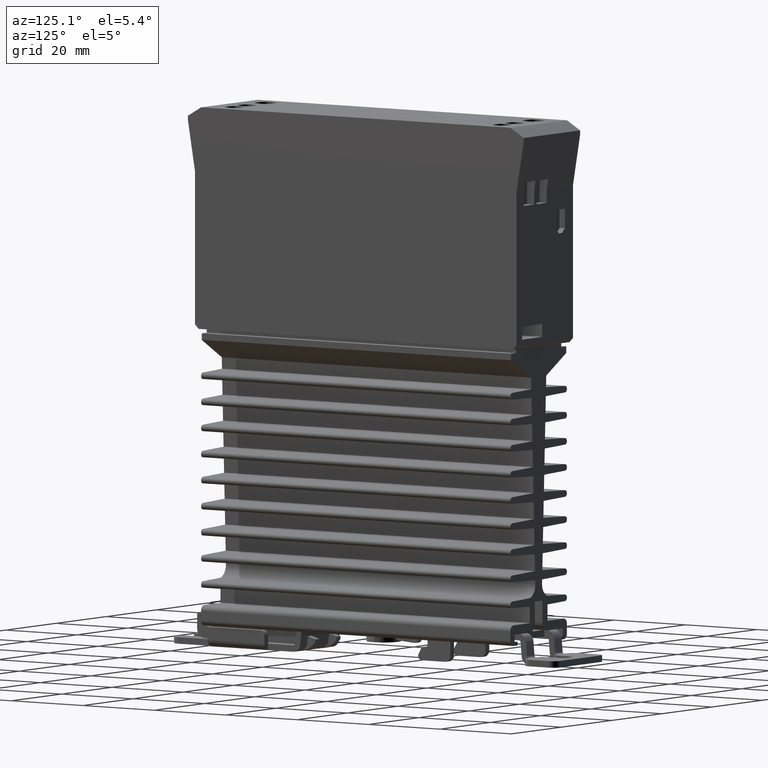
[diagram: clean part render]
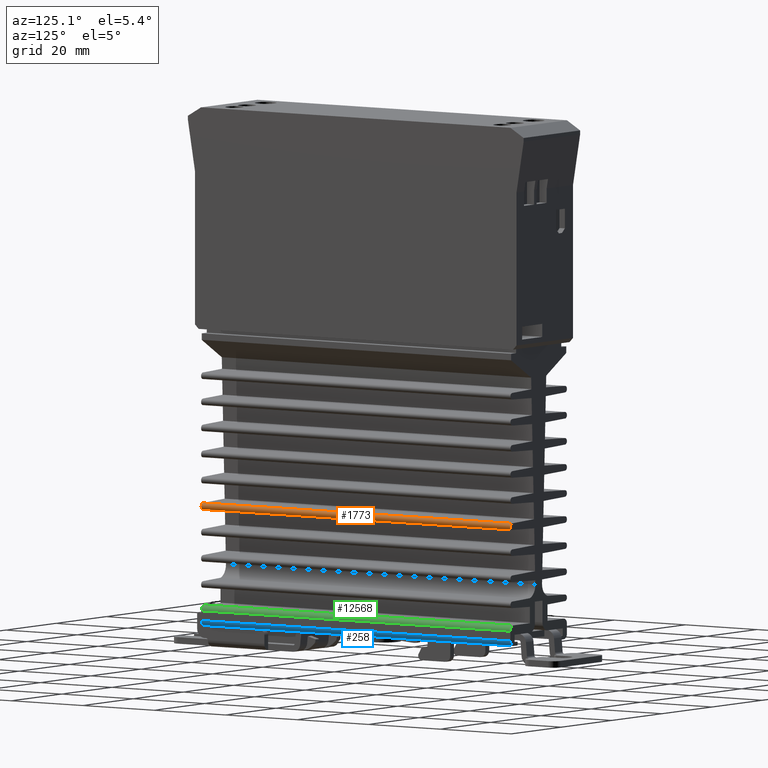
[diagram: same view with three faces highlighted in distinct colors, each labeled with its STEP entity id]
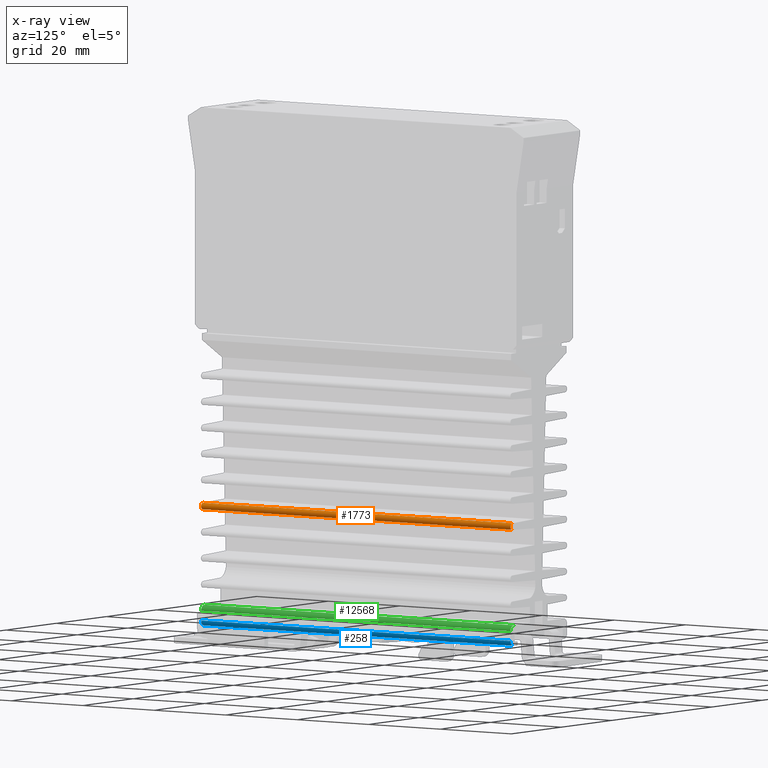
[diagram: x-ray of the same camera — body ghosted, the three highlighted faces saturated]
A machine part, auxiliary view with three faces highlighted in distinct colors.
The next image is the same camera in x-ray (body ghosted, the three faces saturated) — at least one of them is partly hidden behind the body in this view.
Their STEP definitions:

[orange] entity #1773 — the highlighted cylindrical surface (edge-blend (fillet) strip) has radius 0.75 mm, axis along (0, 1, 0).
#210 = EDGE_CURVE ( 'NONE', #7855, #1487, #10138, .T. ) ;
#1418 = EDGE_CURVE ( 'NONE', #14571, #2906, #6160, .T. ) ;
#1487 = VERTEX_POINT ( 'NONE', #16046 ) ;
#1757 = EDGE_CURVE ( 'NONE', #1487, #2906, #7313, .T. ) ;
#1773 = ADVANCED_FACE ( 'NONE', ( #8053 ), #13070, .T. ) ;
#1820 = VECTOR ( 'NONE', #16206, 39.37007874015748143 ) ;
#2573 = EDGE_LOOP ( 'NONE', ( #16271, #8521, #3639, #12224 ) ) ;
#2906 = VERTEX_POINT ( 'NONE', #3216 ) ;
#2917 = DIRECTION ( 'NONE',  ( 0.000000000000000000, 1.000000000000000000, 0.000000000000000000 ) ) ;
#3216 = CARTESIAN_POINT ( 'NONE',  ( 0.4144163237215291451, 1.704724409448818978, -1.576789640934476378 ) ) ;
#3639 = ORIENTED_EDGE ( 'NONE', *, *, #1757, .T. ) ;
#3815 = CARTESIAN_POINT ( 'NONE',  ( 0.4144163237215291451, -1.704724409448818978, -1.635808784262376303 ) ) ;
#3932 = AXIS2_PLACEMENT_3D ( 'NONE', #4670, #5663, #9614 ) ;
#4359 = CARTESIAN_POINT ( 'NONE',  ( 0.4133858267716535861, -1.704724409448818978, -1.606299212598425452 ) ) ;
#4587 = CARTESIAN_POINT ( 'NONE',  ( 0.4144163237215291451, -1.704724409448818978, -1.635808784262376303 ) ) ;
#4670 = CARTESIAN_POINT ( 'NONE',  ( 0.4133858267716535861, 1.704724409448818978, -1.606299212598425452 ) ) ;
#5026 = CIRCLE ( 'NONE', #11063, 0.02952755905511813758 ) ;
#5595 = EDGE_CURVE ( 'NONE', #7855, #14571, #5026, .T. ) ;
#5663 = DIRECTION ( 'NONE',  ( -0.000000000000000000, -1.000000000000000000, -0.000000000000000000 ) ) ;
#5821 = DIRECTION ( 'NONE',  ( 0.000000000000000000, 0.000000000000000000, 1.000000000000000000 ) ) ;
#5873 = CARTESIAN_POINT ( 'NONE',  ( 0.4144163237215299778, -1.704724409448818978, -1.576789640934476378 ) ) ;
#5905 = DIRECTION ( 'NONE',  ( 0.000000000000000000, 1.000000000000000000, 0.000000000000000000 ) ) ;
#6035 = DIRECTION ( 'NONE',  ( -4.625929269271481378E-15, 0.000000000000000000, 1.000000000000000000 ) ) ;
#6160 = LINE ( 'NONE', #11093, #1820 ) ;
#6755 = VECTOR ( 'NONE', #2917, 39.37007874015748143 ) ;
#7313 = CIRCLE ( 'NONE', #3932, 0.02952755905511813758 ) ;
#7855 = VERTEX_POINT ( 'NONE', #4587 ) ;
#8053 = FACE_OUTER_BOUND ( 'NONE', #2573, .T. ) ;
#8521 = ORIENTED_EDGE ( 'NONE', *, *, #210, .T. ) ;
#9614 = DIRECTION ( 'NONE',  ( -4.625929269271481378E-15, 0.000000000000000000, 1.000000000000000000 ) ) ;
#10138 = LINE ( 'NONE', #3815, #6755 ) ;
#11063 = AXIS2_PLACEMENT_3D ( 'NONE', #16160, #12218, #6035 ) ;
#11093 = CARTESIAN_POINT ( 'NONE',  ( 0.4144163237215291451, -1.704724409448818978, -1.576789640934476378 ) ) ;
#12218 = DIRECTION ( 'NONE',  ( -0.000000000000000000, -1.000000000000000000, -0.000000000000000000 ) ) ;
#12224 = ORIENTED_EDGE ( 'NONE', *, *, #1418, .F. ) ;
#13070 = CYLINDRICAL_SURFACE ( 'NONE', #15491, 0.02952755905511813758 ) ;
#14571 = VERTEX_POINT ( 'NONE', #5873 ) ;
#15491 = AXIS2_PLACEMENT_3D ( 'NONE', #4359, #5905, #5821 ) ;
#16046 = CARTESIAN_POINT ( 'NONE',  ( 0.4144163237215291451, 1.704724409448818978, -1.635808784262376303 ) ) ;
#16160 = CARTESIAN_POINT ( 'NONE',  ( 0.4133858267716535861, -1.704724409448818978, -1.606299212598425452 ) ) ;
#16206 = DIRECTION ( 'NONE',  ( 0.000000000000000000, 1.000000000000000000, 0.000000000000000000 ) ) ;
#16271 = ORIENTED_EDGE ( 'NONE', *, *, #5595, .F. ) ;

[blue] entity #258 — the highlighted cylindrical surface (edge-blend (fillet) strip) has radius 1.25 mm, axis along (0, 1, 0).
#258 = ADVANCED_FACE ( 'NONE', ( #15321 ), #13921, .T. ) ;
#461 = EDGE_LOOP ( 'NONE', ( #2741, #12150, #6402, #6370 ) ) ;
#672 = LINE ( 'NONE', #6831, #14098 ) ;
#1097 = CARTESIAN_POINT ( 'NONE',  ( 0.4429133858267716439, -1.704724409448818978, -2.639763779527559251 ) ) ;
#1337 = DIRECTION ( 'NONE',  ( 0.000000000000000000, 1.000000000000000000, 0.000000000000000000 ) ) ;
#2741 = ORIENTED_EDGE ( 'NONE', *, *, #9086, .F. ) ;
#3039 = AXIS2_PLACEMENT_3D ( 'NONE', #11446, #13833, #15159 ) ;
#3066 = VERTEX_POINT ( 'NONE', #11074 ) ;
#3876 = CIRCLE ( 'NONE', #10434, 0.04921259842519689481 ) ;
#4061 = CARTESIAN_POINT ( 'NONE',  ( 0.3937007874015748254, 0.000000000000000000, -2.639763779527559251 ) ) ;
#4296 = DIRECTION ( 'NONE',  ( -0.000000000000000000, -1.000000000000000000, -0.000000000000000000 ) ) ;
#6370 = ORIENTED_EDGE ( 'NONE', *, *, #9036, .F. ) ;
#6402 = ORIENTED_EDGE ( 'NONE', *, *, #12215, .T. ) ;
#6761 = CARTESIAN_POINT ( 'NONE',  ( 0.4429133858267716439, 1.704724409448818978, -2.639763779527559251 ) ) ;
#6831 = CARTESIAN_POINT ( 'NONE',  ( 0.4429133858267716439, 0.000000000000000000, -2.639763779527559251 ) ) ;
#7402 = EDGE_CURVE ( 'NONE', #3066, #8135, #7921, .T. ) ;
#7908 = DIRECTION ( 'NONE',  ( 0.000000000000000000, 0.000000000000000000, 1.000000000000000000 ) ) ;
#7921 = LINE ( 'NONE', #11714, #10871 ) ;
#8135 = VERTEX_POINT ( 'NONE', #15275 ) ;
#9036 = EDGE_CURVE ( 'NONE', #14527, #10648, #672, .T. ) ;
#9086 = EDGE_CURVE ( 'NONE', #3066, #14527, #3876, .T. ) ;
#9308 = DIRECTION ( 'NONE',  ( 0.000000000000000000, 0.000000000000000000, 1.000000000000000000 ) ) ;
#10434 = AXIS2_PLACEMENT_3D ( 'NONE', #15567, #4296, #9308 ) ;
#10542 = DIRECTION ( 'NONE',  ( 0.000000000000000000, 1.000000000000000000, 0.000000000000000000 ) ) ;
#10648 = VERTEX_POINT ( 'NONE', #6761 ) ;
#10871 = VECTOR ( 'NONE', #12621, 39.37007874015748143 ) ;
#11074 = CARTESIAN_POINT ( 'NONE',  ( 0.3937007874015748254, -1.704724409448818978, -2.688976377952756014 ) ) ;
#11446 = CARTESIAN_POINT ( 'NONE',  ( 0.3937007874015748254, 1.704724409448818978, -2.639763779527559251 ) ) ;
#11714 = CARTESIAN_POINT ( 'NONE',  ( 0.3937007874015748254, 0.000000000000000000, -2.688976377952756014 ) ) ;
#12150 = ORIENTED_EDGE ( 'NONE', *, *, #7402, .T. ) ;
#12215 = EDGE_CURVE ( 'NONE', #8135, #10648, #13258, .T. ) ;
#12621 = DIRECTION ( 'NONE',  ( 0.000000000000000000, 1.000000000000000000, 0.000000000000000000 ) ) ;
#13258 = CIRCLE ( 'NONE', #3039, 0.04921259842519689481 ) ;
#13833 = DIRECTION ( 'NONE',  ( -0.000000000000000000, -1.000000000000000000, -0.000000000000000000 ) ) ;
#13921 = CYLINDRICAL_SURFACE ( 'NONE', #15962, 0.04921259842519689481 ) ;
#14098 = VECTOR ( 'NONE', #10542, 39.37007874015748143 ) ;
#14527 = VERTEX_POINT ( 'NONE', #1097 ) ;
#15159 = DIRECTION ( 'NONE',  ( 0.000000000000000000, 0.000000000000000000, 1.000000000000000000 ) ) ;
#15275 = CARTESIAN_POINT ( 'NONE',  ( 0.3937007874015748254, 1.704724409448818978, -2.688976377952756014 ) ) ;
#15321 = FACE_OUTER_BOUND ( 'NONE', #461, .T. ) ;
#15567 = CARTESIAN_POINT ( 'NONE',  ( 0.3937007874015748254, -1.704724409448818978, -2.639763779527559251 ) ) ;
#15962 = AXIS2_PLACEMENT_3D ( 'NONE', #4061, #1337, #7908 ) ;

[green] entity #12568 — the highlighted cylindrical surface (edge-blend (fillet) strip) has radius 1.25 mm, axis along (0, 1, 0).
#363 = DIRECTION ( 'NONE',  ( 0.000000000000000000, 0.000000000000000000, 1.000000000000000000 ) ) ;
#656 = AXIS2_PLACEMENT_3D ( 'NONE', #8202, #1964, #6965 ) ;
#1696 = CARTESIAN_POINT ( 'NONE',  ( 0.4429133858267716439, -1.704724409448818978, -2.551181102362204633 ) ) ;
#1964 = DIRECTION ( 'NONE',  ( 0.000000000000000000, 1.000000000000000000, 0.000000000000000000 ) ) ;
#2243 = DIRECTION ( 'NONE',  ( 0.000000000000000000, 1.000000000000000000, 0.000000000000000000 ) ) ;
#2391 = VERTEX_POINT ( 'NONE', #13859 ) ;
#3748 = EDGE_CURVE ( 'NONE', #2391, #4993, #15583, .T. ) ;
#3806 = CARTESIAN_POINT ( 'NONE',  ( 0.4429133858267716439, 1.704724409448818978, -2.551181102362204633 ) ) ;
#4316 = CARTESIAN_POINT ( 'NONE',  ( 0.3937007874015748254, 0.000000000000000000, -2.501968503937007871 ) ) ;
#4537 = EDGE_CURVE ( 'NONE', #10384, #2391, #5582, .T. ) ;
#4993 = VERTEX_POINT ( 'NONE', #11514 ) ;
#5582 = CIRCLE ( 'NONE', #8197, 0.04921259842519689481 ) ;
#5683 = AXIS2_PLACEMENT_3D ( 'NONE', #10233, #6603, #363 ) ;
#6603 = DIRECTION ( 'NONE',  ( -0.000000000000000000, -1.000000000000000000, -0.000000000000000000 ) ) ;
#6965 = DIRECTION ( 'NONE',  ( 0.000000000000000000, 0.000000000000000000, 1.000000000000000000 ) ) ;
#7330 = DIRECTION ( 'NONE',  ( -0.000000000000000000, -1.000000000000000000, -0.000000000000000000 ) ) ;
#8197 = AXIS2_PLACEMENT_3D ( 'NONE', #12529, #7330, #10961 ) ;
#8202 = CARTESIAN_POINT ( 'NONE',  ( 0.3937007874015748254, 0.000000000000000000, -2.551181102362204633 ) ) ;
#8473 = EDGE_CURVE ( 'NONE', #12254, #4993, #11989, .T. ) ;
#9325 = DIRECTION ( 'NONE',  ( 0.000000000000000000, 1.000000000000000000, 0.000000000000000000 ) ) ;
#9462 = EDGE_LOOP ( 'NONE', ( #13151, #10717, #10363, #13399 ) ) ;
#9844 = CYLINDRICAL_SURFACE ( 'NONE', #656, 0.04921259842519689481 ) ;
#10233 = CARTESIAN_POINT ( 'NONE',  ( 0.3937007874015748254, 1.704724409448818978, -2.551181102362204633 ) ) ;
#10363 = ORIENTED_EDGE ( 'NONE', *, *, #8473, .T. ) ;
#10384 = VERTEX_POINT ( 'NONE', #1696 ) ;
#10717 = ORIENTED_EDGE ( 'NONE', *, *, #12105, .T. ) ;
#10757 = FACE_OUTER_BOUND ( 'NONE', #9462, .T. ) ;
#10961 = DIRECTION ( 'NONE',  ( 0.000000000000000000, 0.000000000000000000, 1.000000000000000000 ) ) ;
#11514 = CARTESIAN_POINT ( 'NONE',  ( 0.3937007874015748254, 1.704724409448818978, -2.501968503937007871 ) ) ;
#11958 = CARTESIAN_POINT ( 'NONE',  ( 0.4429133858267716439, 0.000000000000000000, -2.551181102362204633 ) ) ;
#11989 = CIRCLE ( 'NONE', #5683, 0.04921259842519689481 ) ;
#12105 = EDGE_CURVE ( 'NONE', #10384, #12254, #16057, .T. ) ;
#12254 = VERTEX_POINT ( 'NONE', #3806 ) ;
#12373 = VECTOR ( 'NONE', #9325, 39.37007874015748143 ) ;
#12529 = CARTESIAN_POINT ( 'NONE',  ( 0.3937007874015748254, -1.704724409448818978, -2.551181102362204633 ) ) ;
#12568 = ADVANCED_FACE ( 'NONE', ( #10757 ), #9844, .T. ) ;
#13151 = ORIENTED_EDGE ( 'NONE', *, *, #4537, .F. ) ;
#13399 = ORIENTED_EDGE ( 'NONE', *, *, #3748, .F. ) ;
#13859 = CARTESIAN_POINT ( 'NONE',  ( 0.3937007874015748254, -1.704724409448818978, -2.501968503937007871 ) ) ;
#15583 = LINE ( 'NONE', #4316, #12373 ) ;
#15612 = VECTOR ( 'NONE', #2243, 39.37007874015748143 ) ;
#16057 = LINE ( 'NONE', #11958, #15612 ) ;